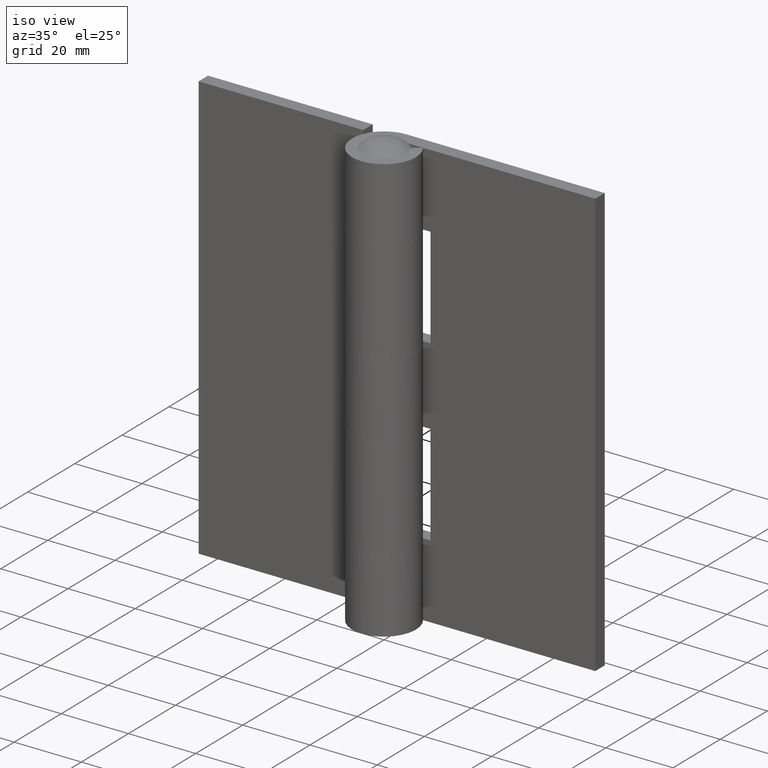
[diagram: clean part render]
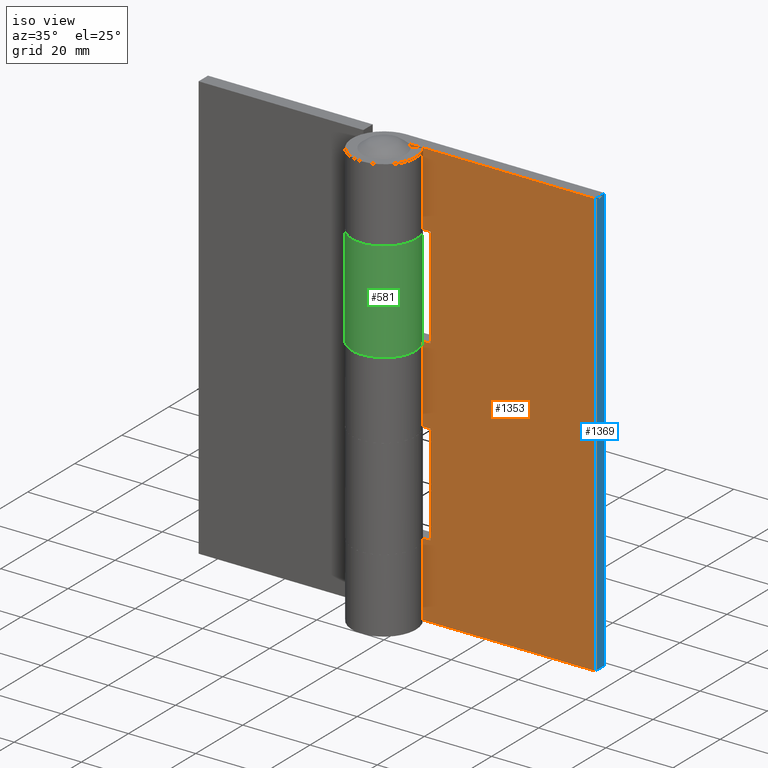
[diagram: same view with three faces highlighted in distinct colors, each labeled with its STEP entity id]
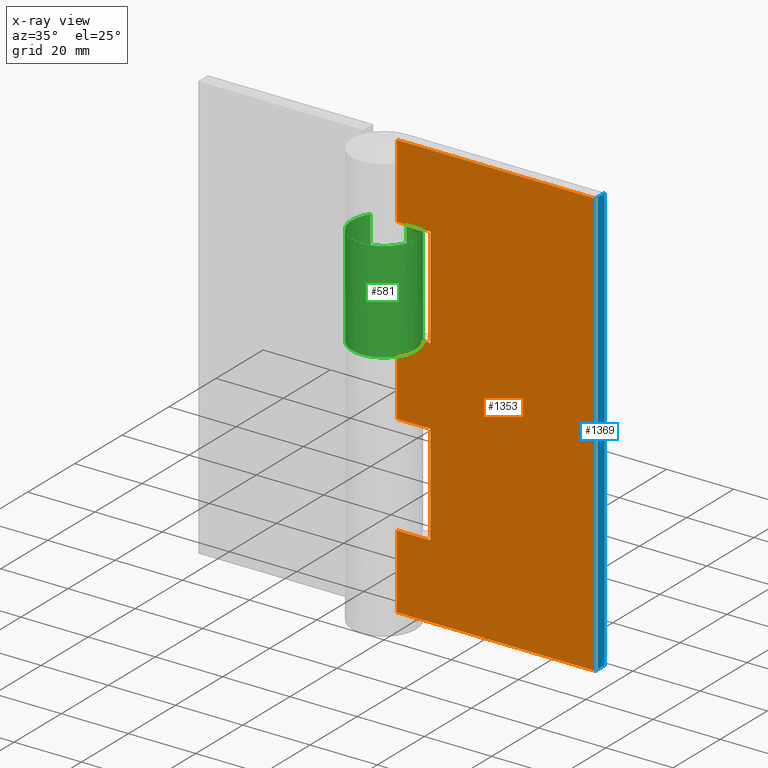
[diagram: x-ray of the same camera — body ghosted, the three highlighted faces saturated]
A machine part, iso view with three faces highlighted in distinct colors.
The next image is the same camera in x-ray (body ghosted, the three faces saturated) — at least one of them is partly hidden behind the body in this view.
Their STEP definitions:

[orange] entity #1353 — the highlighted face is a freeform B-spline surface patch.
#796=CARTESIAN_POINT('',(10.0,5.500000000000000,52.0));
#797=VERTEX_POINT('',#796);
#803=CARTESIAN_POINT('',(0.0,5.500000000000000,52.0));
#804=VERTEX_POINT('',#803);
#805=CARTESIAN_POINT('',(10.0,5.500000000000000,52.0));
#806=CARTESIAN_POINT('',(0.0,5.500000000000000,52.0));
#807=QUASI_UNIFORM_CURVE('',1,(#805,#806),.UNSPECIFIED.,.F.,.U.);
#808=EDGE_CURVE('',#797,#804,#807,.T.);
#844=CARTESIAN_POINT('',(10.0,5.500000000000000,22.0));
#845=VERTEX_POINT('',#844);
#846=CARTESIAN_POINT('',(10.0,5.500000000000000,22.0));
#847=CARTESIAN_POINT('',(10.0,5.500000000000000,52.0));
#848=QUASI_UNIFORM_CURVE('',1,(#846,#847),.UNSPECIFIED.,.F.,.U.);
#849=EDGE_CURVE('',#845,#797,#848,.T.);
#902=CARTESIAN_POINT('',(0.0,5.500000000000000,22.0));
#903=VERTEX_POINT('',#902);
#923=CARTESIAN_POINT('',(0.0,5.500000000000000,22.0));
#924=CARTESIAN_POINT('',(10.0,5.500000000000000,22.0));
#925=QUASI_UNIFORM_CURVE('',1,(#923,#924),.UNSPECIFIED.,.F.,.U.);
#926=EDGE_CURVE('',#903,#845,#925,.T.);
#972=CARTESIAN_POINT('',(0.0,5.500000000000000,75.0));
#973=VERTEX_POINT('',#972);
#993=CARTESIAN_POINT('',(10.0,5.500000000000000,75.0));
#994=VERTEX_POINT('',#993);
#995=CARTESIAN_POINT('',(0.0,5.500000000000000,75.0));
#996=CARTESIAN_POINT('',(10.0,5.500000000000000,75.0));
#997=QUASI_UNIFORM_CURVE('',1,(#995,#996),.UNSPECIFIED.,.F.,.U.);
#998=EDGE_CURVE('',#973,#994,#997,.T.);
#1020=CARTESIAN_POINT('',(10.0,5.500000000000000,105.0));
#1021=VERTEX_POINT('',#1020);
#1022=CARTESIAN_POINT('',(10.0,5.500000000000000,75.0));
#1023=CARTESIAN_POINT('',(10.0,5.500000000000000,105.0));
#1024=QUASI_UNIFORM_CURVE('',1,(#1022,#1023),.UNSPECIFIED.,.F.,.U.);
#1025=EDGE_CURVE('',#994,#1021,#1024,.T.);
#1077=CARTESIAN_POINT('',(0.0,5.500000000000000,105.0));
#1078=VERTEX_POINT('',#1077);
#1079=CARTESIAN_POINT('',(10.0,5.500000000000000,105.0));
#1080=CARTESIAN_POINT('',(0.0,5.500000000000000,105.0));
#1081=QUASI_UNIFORM_CURVE('',1,(#1079,#1080),.UNSPECIFIED.,.F.,.U.);
#1082=EDGE_CURVE('',#1021,#1078,#1081,.T.);
#1148=CARTESIAN_POINT('',(59.0,5.500000000000000,0.0));
#1149=VERTEX_POINT('',#1148);
#1155=CARTESIAN_POINT('',(0.0,5.500000000000000,0.0));
#1156=VERTEX_POINT('',#1155);
#1157=CARTESIAN_POINT('',(59.0,5.500000000000000,0.0));
#1158=CARTESIAN_POINT('',(0.0,5.500000000000000,0.0));
#1159=QUASI_UNIFORM_CURVE('',1,(#1157,#1158),.UNSPECIFIED.,.F.,.U.);
#1160=EDGE_CURVE('',#1149,#1156,#1159,.T.);
#1226=CARTESIAN_POINT('',(0.0,5.500000000000000,127.0));
#1227=VERTEX_POINT('',#1226);
#1247=CARTESIAN_POINT('',(59.0,5.500000000000000,127.0));
#1248=VERTEX_POINT('',#1247);
#1249=CARTESIAN_POINT('',(59.0,5.500000000000000,127.0));
#1250=CARTESIAN_POINT('',(0.0,5.500000000000000,127.0));
#1251=QUASI_UNIFORM_CURVE('',1,(#1249,#1250),.UNSPECIFIED.,.F.,.U.);
#1252=EDGE_CURVE('',#1248,#1227,#1251,.T.);
#1313=CARTESIAN_POINT('',(0.0,5.500000000000000,75.0));
#1314=CARTESIAN_POINT('',(0.0,5.500000000000000,52.0));
#1315=QUASI_UNIFORM_CURVE('',1,(#1313,#1314),.UNSPECIFIED.,.F.,.U.);
#1316=EDGE_CURVE('',#973,#804,#1315,.T.);
#1322=CARTESIAN_POINT('',(-2.947049885646545,5.500000000000000,133.343649753849410));
#1323=CARTESIAN_POINT('',(-2.947049885646545,5.500000000000000,-6.343653160254808));
#1324=CARTESIAN_POINT('',(61.947051468149873,5.500000000000000,133.343649753849410));
#1325=CARTESIAN_POINT('',(61.947051468149873,5.500000000000000,-6.343653160254808));
#1326=B_SPLINE_SURFACE_WITH_KNOTS('',1,1,((#1322,#1324),(#1323,#1325)),.UNSPECIFIED.,.F.,.F.,.U.,(2,2),(2,2),(0.0,139.687302914104210),(0.0,64.894101353796415),.UNSPECIFIED.);
#1327=ORIENTED_EDGE('',*,*,#926,.F.);
#1328=CARTESIAN_POINT('',(0.0,5.500000000000000,22.0));
#1329=CARTESIAN_POINT('',(0.0,5.500000000000000,0.0));
#1330=QUASI_UNIFORM_CURVE('',1,(#1328,#1329),.UNSPECIFIED.,.F.,.U.);
#1331=EDGE_CURVE('',#903,#1156,#1330,.T.);
#1332=ORIENTED_EDGE('',*,*,#1331,.T.);
#1333=ORIENTED_EDGE('',*,*,#1160,.F.);
#1334=CARTESIAN_POINT('',(59.0,5.500000000000000,127.0));
#1335=CARTESIAN_POINT('',(59.0,5.500000000000000,0.0));
#1336=QUASI_UNIFORM_CURVE('',1,(#1334,#1335),.UNSPECIFIED.,.F.,.U.);
#1337=EDGE_CURVE('',#1248,#1149,#1336,.T.);
#1338=ORIENTED_EDGE('',*,*,#1337,.F.);
#1339=ORIENTED_EDGE('',*,*,#1252,.T.);
#1340=CARTESIAN_POINT('',(0.0,5.500000000000000,127.0));
#1341=CARTESIAN_POINT('',(0.0,5.500000000000000,105.0));
#1342=QUASI_UNIFORM_CURVE('',1,(#1340,#1341),.UNSPECIFIED.,.F.,.U.);
#1343=EDGE_CURVE('',#1227,#1078,#1342,.T.);
#1344=ORIENTED_EDGE('',*,*,#1343,.T.);
#1345=ORIENTED_EDGE('',*,*,#1082,.F.);
#1346=ORIENTED_EDGE('',*,*,#1025,.F.);
#1347=ORIENTED_EDGE('',*,*,#998,.F.);
#1348=ORIENTED_EDGE('',*,*,#1316,.T.);
#1349=ORIENTED_EDGE('',*,*,#808,.F.);
#1350=ORIENTED_EDGE('',*,*,#849,.F.);
#1351=EDGE_LOOP('',(#1327,#1332,#1333,#1338,#1339,#1344,#1345,#1346,#1347,#1348,#1349,#1350));
#1352=FACE_OUTER_BOUND('',#1351,.T.);
#1353=ADVANCED_FACE('',(#1352),#1326,.T.);

[blue] entity #1369 — the highlighted face is a freeform B-spline surface patch.
#1141=CARTESIAN_POINT('',(59.0,9.500000000000000,0.0));
#1142=VERTEX_POINT('',#1141);
#1148=CARTESIAN_POINT('',(59.0,5.500000000000000,0.0));
#1149=VERTEX_POINT('',#1148);
#1150=CARTESIAN_POINT('',(59.0,9.500000000000000,0.0));
#1151=CARTESIAN_POINT('',(59.0,5.500000000000000,0.0));
#1152=QUASI_UNIFORM_CURVE('',1,(#1150,#1151),.UNSPECIFIED.,.F.,.U.);
#1153=EDGE_CURVE('',#1142,#1149,#1152,.T.);
#1247=CARTESIAN_POINT('',(59.0,5.500000000000000,127.0));
#1248=VERTEX_POINT('',#1247);
#1254=CARTESIAN_POINT('',(59.0,9.500000000000000,127.0));
#1255=VERTEX_POINT('',#1254);
#1256=CARTESIAN_POINT('',(59.0,9.500000000000000,127.0));
#1257=CARTESIAN_POINT('',(59.0,5.500000000000000,127.0));
#1258=QUASI_UNIFORM_CURVE('',1,(#1256,#1257),.UNSPECIFIED.,.F.,.U.);
#1259=EDGE_CURVE('',#1255,#1248,#1258,.T.);
#1334=CARTESIAN_POINT('',(59.0,5.500000000000000,127.0));
#1335=CARTESIAN_POINT('',(59.0,5.500000000000000,0.0));
#1336=QUASI_UNIFORM_CURVE('',1,(#1334,#1335),.UNSPECIFIED.,.F.,.U.);
#1337=EDGE_CURVE('',#1248,#1149,#1336,.T.);
#1354=CARTESIAN_POINT('',(59.0,5.300200007752776,133.343649753849410));
#1355=CARTESIAN_POINT('',(59.0,5.300200007752776,-6.343653160254808));
#1356=CARTESIAN_POINT('',(59.0,9.699800099535585,133.343649753849410));
#1357=CARTESIAN_POINT('',(59.0,9.699800099535585,-6.343653160254808));
#1358=B_SPLINE_SURFACE_WITH_KNOTS('',1,1,((#1354,#1356),(#1355,#1357)),.UNSPECIFIED.,.F.,.F.,.U.,(2,2),(2,2),(0.0,139.687302914104210),(0.0,4.399600091782809),.UNSPECIFIED.);
#1359=ORIENTED_EDGE('',*,*,#1153,.F.);
#1360=CARTESIAN_POINT('',(59.0,9.500000000000000,127.0));
#1361=CARTESIAN_POINT('',(59.0,9.500000000000000,0.0));
#1362=QUASI_UNIFORM_CURVE('',1,(#1360,#1361),.UNSPECIFIED.,.F.,.U.);
#1363=EDGE_CURVE('',#1255,#1142,#1362,.T.);
#1364=ORIENTED_EDGE('',*,*,#1363,.F.);
#1365=ORIENTED_EDGE('',*,*,#1259,.T.);
#1366=ORIENTED_EDGE('',*,*,#1337,.T.);
#1367=EDGE_LOOP('',(#1359,#1364,#1365,#1366));
#1368=FACE_OUTER_BOUND('',#1367,.T.);
#1369=ADVANCED_FACE('',(#1368),#1358,.T.);

[green] entity #581 — the highlighted face is a freeform B-spline surface patch.
#143=CARTESIAN_POINT('',(0.0,9.500000000000000,75.0));
#144=VERTEX_POINT('',#143);
#150=CARTESIAN_POINT('',(-7.781227409605759,5.450000000000000,75.0));
#151=VERTEX_POINT('',#150);
#152=CARTESIAN_POINT('',(-7.781227409605761,5.450000000000001,75.0));
#153=CARTESIAN_POINT('',(-12.058559473616100,-0.656952935130794,75.0));
#154=CARTESIAN_POINT('',(-7.143096249900881,-6.263080389445113,75.0));
#155=CARTESIAN_POINT('',(-2.227633026185663,-11.869207843759433,75.0));
#156=CARTESIAN_POINT('',(4.386057455164039,-8.426891479068656,75.0));
#157=CARTESIAN_POINT('',(10.999747936513728,-4.984575114377889,75.0));
#158=CARTESIAN_POINT('',(9.227823932302576,2.257712442811048,75.0));
#159=CARTESIAN_POINT('',(7.455899928091419,9.500000000000000,75.0));
#160=CARTESIAN_POINT('',(0.0,9.500000000000000,75.0));
#168=(BOUNDED_CURVE()B_SPLINE_CURVE(2,(#152,#153,#154,#155,#156,#157,#158,#159,#160),.UNSPECIFIED.,.F.,.U.)B_SPLINE_CURVE_WITH_KNOTS((3,2,2,2,3),(0.0,0.250000000000000,0.500000000000000,0.750000000000000,1.0),.UNSPECIFIED.)CURVE()GEOMETRIC_REPRESENTATION_ITEM()RATIONAL_B_SPLINE_CURVE((1.0,0.786655560378407,1.0,0.786655560378407,1.0,0.786655560378407,1.0,0.786655560378407,1.0))REPRESENTATION_ITEM(''));
#169=EDGE_CURVE('',#151,#144,#168,.T.);
#395=CARTESIAN_POINT('',(-7.781227409605759,5.450000000000000,105.0));
#396=VERTEX_POINT('',#395);
#402=CARTESIAN_POINT('',(0.0,9.500000000000000,105.0));
#403=VERTEX_POINT('',#402);
#404=CARTESIAN_POINT('',(0.0,9.500000000000000,105.0));
#405=CARTESIAN_POINT('',(7.455899928091415,9.500000000000000,105.000000000000010));
#406=CARTESIAN_POINT('',(9.227823932302576,2.257712442811053,105.0));
#407=CARTESIAN_POINT('',(10.999747936513732,-4.984575114377887,105.000000000000010));
#408=CARTESIAN_POINT('',(4.386057455164036,-8.426891479068658,105.0));
#409=CARTESIAN_POINT('',(-2.227633026185662,-11.869207843759431,105.000000000000010));
#410=CARTESIAN_POINT('',(-7.143096249900879,-6.263080389445118,105.0));
#411=CARTESIAN_POINT('',(-12.058559473616100,-0.656952935130801,105.000000000000010));
#412=CARTESIAN_POINT('',(-7.781227409605764,5.449999999999996,105.0));
#420=(BOUNDED_CURVE()B_SPLINE_CURVE(2,(#404,#405,#406,#407,#408,#409,#410,#411,#412),.UNSPECIFIED.,.F.,.U.)B_SPLINE_CURVE_WITH_KNOTS((3,2,2,2,3),(0.0,0.250000000000000,0.500000000000000,0.750000000000000,1.0),.UNSPECIFIED.)CURVE()GEOMETRIC_REPRESENTATION_ITEM()RATIONAL_B_SPLINE_CURVE((1.0,0.786655560378407,1.0,0.786655560378407,1.0,0.786655560378407,1.0,0.786655560378407,1.0))REPRESENTATION_ITEM(''));
#421=EDGE_CURVE('',#403,#396,#420,.T.);
#545=CARTESIAN_POINT('',(-7.536856732766731,5.783233575582844,105.750000000000000));
#546=CARTESIAN_POINT('',(-7.536856732766731,5.783233575582844,74.231249999999989));
#547=CARTESIAN_POINT('',(-14.939058154852050,-3.863503132560002,105.750000000000010));
#548=CARTESIAN_POINT('',(-14.939058154852050,-3.863503132560002,74.231250000000003));
#549=CARTESIAN_POINT('',(-3.788116154789837,-8.712070706658674,105.750000000000000));
#550=CARTESIAN_POINT('',(-3.788116154789837,-8.712070706658674,74.231249999999989));
#551=CARTESIAN_POINT('',(7.362825845272375,-13.560638280757351,105.750000000000010));
#552=CARTESIAN_POINT('',(7.362825845272375,-13.560638280757351,74.231250000000003));
#553=CARTESIAN_POINT('',(9.369713214603692,-1.567952255676439,105.750000000000000));
#554=CARTESIAN_POINT('',(9.369713214603692,-1.567952255676439,74.231249999999989));
#555=CARTESIAN_POINT('',(11.376600583935014,10.424733769404469,105.750000000000010));
#556=CARTESIAN_POINT('',(11.376600583935014,10.424733769404469,74.231250000000003));
#557=CARTESIAN_POINT('',(-0.745361409414524,9.470714670464709,105.750000000000000));
#558=CARTESIAN_POINT('',(-0.745361409414524,9.470714670464709,74.231249999999989));
#566=(BOUNDED_SURFACE()B_SPLINE_SURFACE(1,2,((#545,#547,#549,#551,#553,#555,#557),(#546,#548,#550,#552,#554,#556,#558)),.UNSPECIFIED.,.F.,.F.,.U.)B_SPLINE_SURFACE_WITH_KNOTS((2,2),(3,2,2,3),(0.0,31.518750000000029),(0.0,18.533838365502721,37.067676731005449,55.601515096508173),.UNSPECIFIED.)GEOMETRIC_REPRESENTATION_ITEM()RATIONAL_B_SPLINE_SURFACE(((1.0,0.615661475325658,1.0,0.615661475325658,1.0,0.615661475325658,1.0),(1.0,0.615661475325658,1.0,0.615661475325658,1.0,0.615661475325658,1.0)))REPRESENTATION_ITEM('')SURFACE());
#567=ORIENTED_EDGE('',*,*,#169,.T.);
#568=CARTESIAN_POINT('',(0.0,9.500000000000000,105.0));
#569=CARTESIAN_POINT('',(0.0,9.500000000000000,75.0));
#570=QUASI_UNIFORM_CURVE('',1,(#568,#569),.UNSPECIFIED.,.F.,.U.);
#571=EDGE_CURVE('',#403,#144,#570,.T.);
#572=ORIENTED_EDGE('',*,*,#571,.F.);
#573=ORIENTED_EDGE('',*,*,#421,.T.);
#574=CARTESIAN_POINT('',(-7.781227409605759,5.450000000000000,105.0));
#575=CARTESIAN_POINT('',(-7.781227409605759,5.450000000000000,75.0));
#576=QUASI_UNIFORM_CURVE('',1,(#574,#575),.UNSPECIFIED.,.F.,.U.);
#577=EDGE_CURVE('',#396,#151,#576,.T.);
#578=ORIENTED_EDGE('',*,*,#577,.T.);
#579=EDGE_LOOP('',(#567,#572,#573,#578));
#580=FACE_OUTER_BOUND('',#579,.T.);
#581=ADVANCED_FACE('',(#580),#566,.T.);